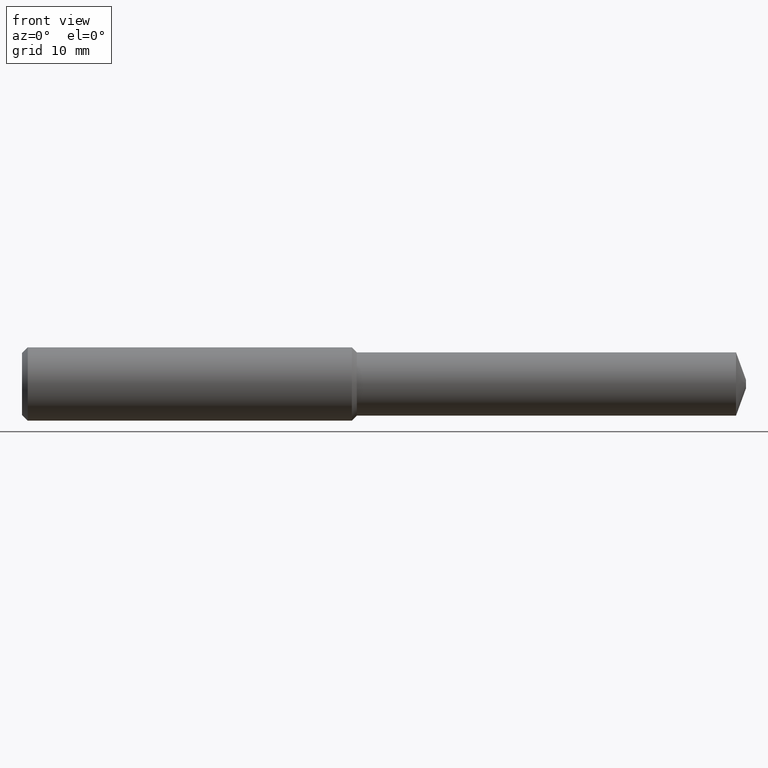
[diagram: clean part render]
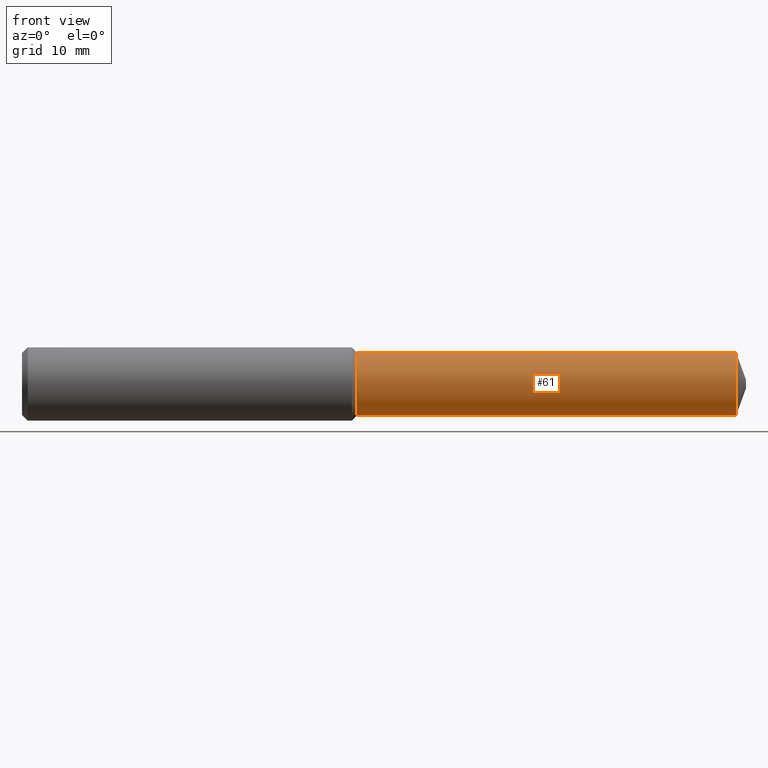
[diagram: same view with one face highlighted and labeled with its STEP entity id]
A machine part, front view. The second image highlights one B-rep face of the part: STEP entity #61.
In plain terms, the highlighted cylindrical surface (edge-blend (fillet) strip) has radius 3.4544 mm, axis along (1, -0, -0).
Its self-contained STEP definition (entity closure, byte-faithful):
#2 = CIRCLE ( 'NONE', #368, 0.1360000000000003983 ) ;
#11 = VERTEX_POINT ( 'NONE', #312 ) ;
#26 = CARTESIAN_POINT ( 'NONE',  ( 1.438803149606299403, 0.000000000000000000, -0.1360000000000001763 ) ) ;
#30 = LINE ( 'NONE', #173, #346 ) ;
#38 = EDGE_LOOP ( 'NONE', ( #113, #180, #359, #266 ) ) ;
#41 = VERTEX_POINT ( 'NONE', #333 ) ;
#55 = LINE ( 'NONE', #349, #365 ) ;
#61 = ADVANCED_FACE ( 'NONE', ( #308 ), #369, .T. ) ;
#113 = ORIENTED_EDGE ( 'NONE', *, *, #288, .F. ) ;
#115 = DIRECTION ( 'NONE',  ( 1.000000000000000000, -0.000000000000000000, -0.000000000000000000 ) ) ;
#134 = CARTESIAN_POINT ( 'NONE',  ( -0.03808593750000075634, 0.000000000000000000, 0.000000000000000000 ) ) ;
#142 = DIRECTION ( 'NONE',  ( 0.000000000000000000, 0.000000000000000000, -1.000000000000000000 ) ) ;
#143 = EDGE_CURVE ( 'NONE', #215, #332, #334, .T. ) ;
#144 = CARTESIAN_POINT ( 'NONE',  ( 1.438803149606299403, 1.665519646840403453E-17, 0.1360000000000001763 ) ) ;
#162 = DIRECTION ( 'NONE',  ( 0.000000000000000000, 0.000000000000000000, -1.000000000000000000 ) ) ;
#165 = DIRECTION ( 'NONE',  ( 1.000000000000000000, -0.000000000000000000, -0.000000000000000000 ) ) ;
#173 = CARTESIAN_POINT ( 'NONE',  ( -0.03808593750000075634, 0.000000000000000000, -0.1360000000000002873 ) ) ;
#180 = ORIENTED_EDGE ( 'NONE', *, *, #143, .T. ) ;
#203 = AXIS2_PLACEMENT_3D ( 'NONE', #134, #227, #224 ) ;
#215 = VERTEX_POINT ( 'NONE', #144 ) ;
#224 = DIRECTION ( 'NONE',  ( 0.000000000000000000, 0.000000000000000000, -1.000000000000000000 ) ) ;
#225 = DIRECTION ( 'NONE',  ( 1.000000000000000000, -0.000000000000000000, -0.000000000000000000 ) ) ;
#227 = DIRECTION ( 'NONE',  ( 1.000000000000000000, -0.000000000000000000, -0.000000000000000000 ) ) ;
#266 = ORIENTED_EDGE ( 'NONE', *, *, #344, .F. ) ;
#288 = EDGE_CURVE ( 'NONE', #215, #41, #55, .T. ) ;
#307 = EDGE_CURVE ( 'NONE', #332, #11, #30, .T. ) ;
#308 = FACE_OUTER_BOUND ( 'NONE', #38, .T. ) ;
#312 = CARTESIAN_POINT ( 'NONE',  ( 3.067105747711896591, 1.665519646840405302E-17, -0.1360000000000003983 ) ) ;
#317 = AXIS2_PLACEMENT_3D ( 'NONE', #336, #225, #162 ) ;
#332 = VERTEX_POINT ( 'NONE', #26 ) ;
#333 = CARTESIAN_POINT ( 'NONE',  ( 3.067105747711896591, 0.000000000000000000, 0.1360000000000003983 ) ) ;
#334 = CIRCLE ( 'NONE', #317, 0.1360000000000001763 ) ;
#336 = CARTESIAN_POINT ( 'NONE',  ( 1.438803149606299403, 0.000000000000000000, 0.000000000000000000 ) ) ;
#344 = EDGE_CURVE ( 'NONE', #41, #11, #2, .T. ) ;
#346 = VECTOR ( 'NONE', #165, 39.37007874015748143 ) ;
#347 = DIRECTION ( 'NONE',  ( 1.000000000000000000, -0.000000000000000000, -0.000000000000000000 ) ) ;
#349 = CARTESIAN_POINT ( 'NONE',  ( -0.03808593750000075634, 1.665519646840404069E-17, 0.1360000000000002873 ) ) ;
#359 = ORIENTED_EDGE ( 'NONE', *, *, #307, .T. ) ;
#365 = VECTOR ( 'NONE', #347, 39.37007874015748143 ) ;
#368 = AXIS2_PLACEMENT_3D ( 'NONE', #373, #115, #142 ) ;
#369 = CYLINDRICAL_SURFACE ( 'NONE', #203, 0.1360000000000002873 ) ;
#373 = CARTESIAN_POINT ( 'NONE',  ( 3.067105747711896591, 0.000000000000000000, 0.000000000000000000 ) ) ;